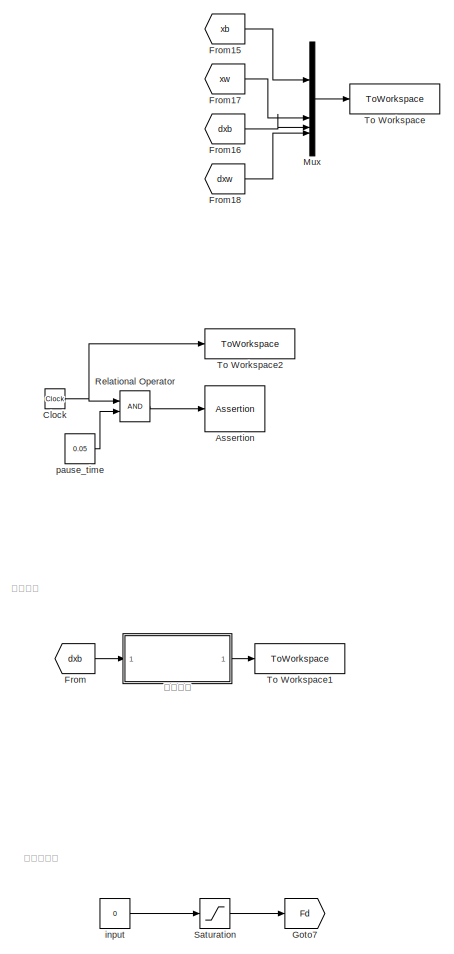
[diagram: root canvas - part 1/3, right side, full height]
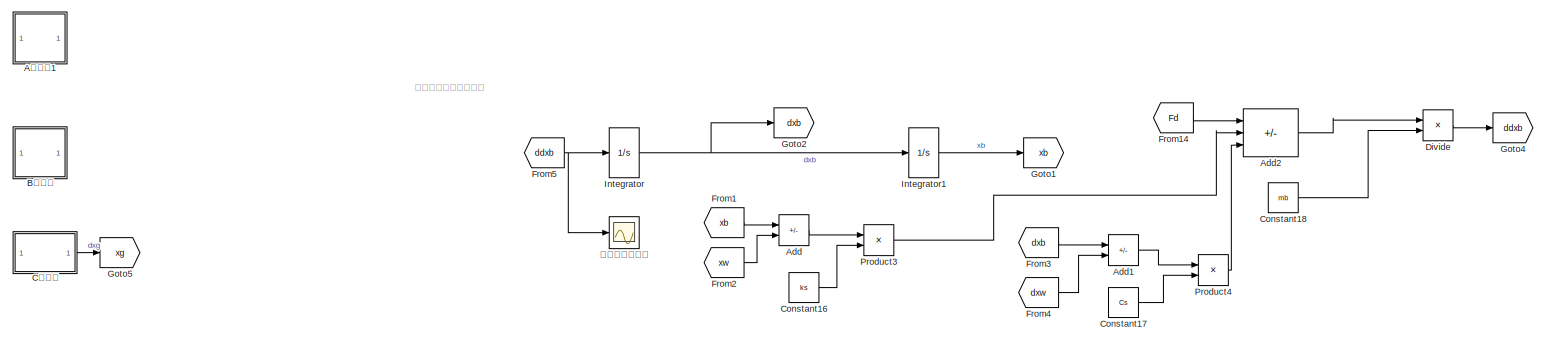
[diagram: root canvas - part 2/3, top center region]
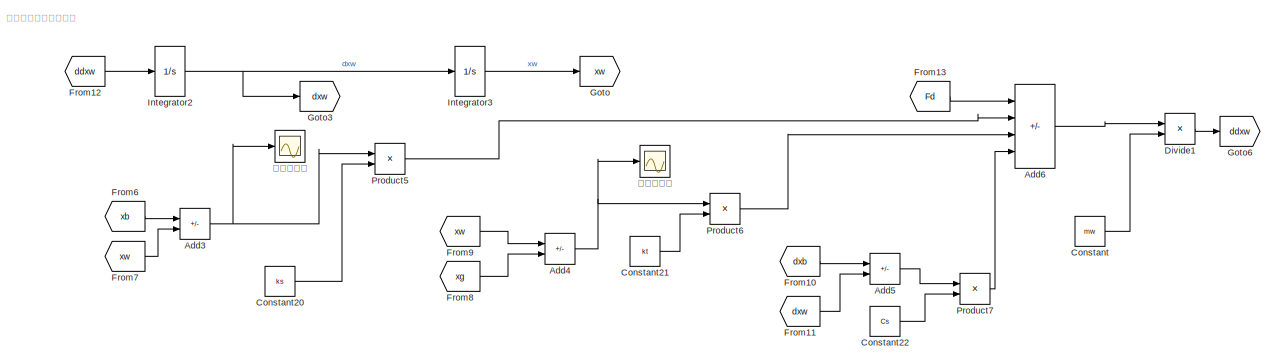
[diagram: root canvas - part 3/3, bottom center region]
MODEL slx_d5d291537383
KIND model
CONFIG AbsTol = auto
CONFIG EnableMultiTasking = off
CONFIG FixedStep = auto
CONFIG InitFcn = mb=320;\nmw=40;\nCs=1800;\nkt=200000;\nks=20000;\nv=36;\n\n
CONFIG MaxStep = auto
CONFIG MinStep = auto
CONFIG RelTol = 1e-3
CONFIG SampleTimeConstraint = Unconstrained
CONFIG SolverName = VariableStepAuto
CONFIG StartTime = 0.0
CONFIG StopTime = 20
BLOCK [Sum] Add
  IconShape = rectangular
  Inputs = +-
BLOCK [Sum] Add1
  IconShape = rectangular
  Inputs = +-
BLOCK [Sum] Add2
  IconShape = rectangular
  Inputs = +--
BLOCK [Sum] Add3
  IconShape = rectangular
  Inputs = +-
BLOCK [Sum] Add4
  IconShape = rectangular
  Inputs = +-
BLOCK [Sum] Add5
  IconShape = rectangular
  Inputs = +-
BLOCK [Sum] Add6
  IconShape = rectangular
  Inputs = -+-+
BLOCK [Assertion] Assertion
  AssertionFailFcn = set_param(bdroot,'SimulationCommand','pause')
  StopWhenAssertionFail = off
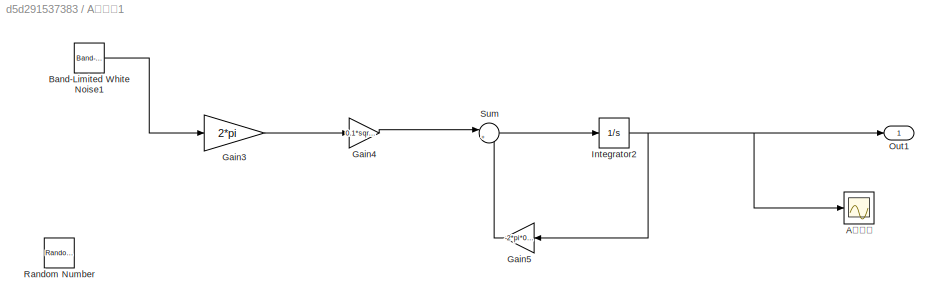
BLOCK [SubSystem] A级路面1
BLOCK [Scope] A级路面1/A级路面
  Floating = off
  NumInputPorts = 1
  ScopeSpecificationString = Simulink.scopes.TimeScopeBlockCfg('CurrentConfiguration', extmgr.ConfigurationSet(extmgr.Configuration('Core','General UI',true),extmgr.Configuration('Core','Source UI',true),extmgr.Configuration('Sources','WiredSimulink',true),extmgr.Configuration('Visuals','Time Domain',true,'SerializedDisplays',{struct('MinYLimReal','-0.01152','MaxYLimReal','0.00879','YLabelReal','','MinYLimMag','0.00000','MaxY...<+1449ch>
BLOCK [Reference] A级路面1/Band-Limited White Noise1  REF=simulink/Sources/Band-Limited
White Noise
  SourceBlock = simulink/Sources/Band-Limited\nWhite Noise
  SourceType = Band-Limited White Noise.
BLOCK [Gain] A级路面1/Gain3
  Gain = 2*pi
BLOCK [Gain] A级路面1/Gain4
  Gain = 0.1*sqrt(16*1e-6*v)
BLOCK [Gain] A级路面1/Gain5
  Gain = -2*pi*0.01*v
  NameLocation = top
BLOCK [Integrator] A级路面1/Integrator2
BLOCK [Outport] A级路面1/Out1
BLOCK [RandomNumber] A级路面1/Random Number
  SampleTime = 0.1
  Seed = 233
BLOCK [Sum] A级路面1/Sum
  Inputs = |++
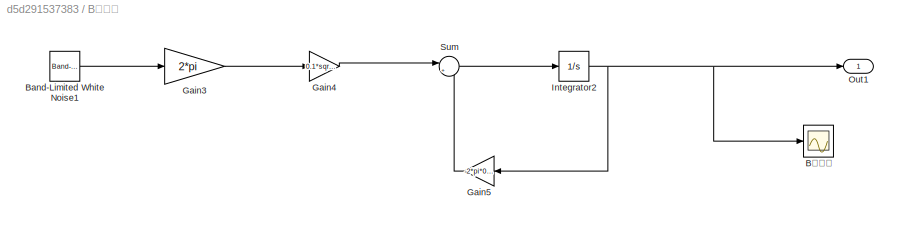
BLOCK [SubSystem] B级路面
BLOCK [Reference] B级路面/Band-Limited White Noise1  REF=simulink/Sources/Band-Limited
White Noise
  SourceBlock = simulink/Sources/Band-Limited\nWhite Noise
  SourceType = Band-Limited White Noise.
BLOCK [Scope] B级路面/B级路面
  Floating = off
  NumInputPorts = 1
  ScopeSpecificationString = Simulink.scopes.TimeScopeBlockCfg('CurrentConfiguration', extmgr.ConfigurationSet(extmgr.Configuration('Core','General UI',true),extmgr.Configuration('Core','Source UI',true),extmgr.Configuration('Sources','WiredSimulink',true),extmgr.Configuration('Visuals','Time Domain',true,'SerializedDisplays',{struct('MinYLimReal','-0.04608','MaxYLimReal','0.03516','YLabelReal','','MinYLimMag','0.00000','MaxY...<+1449ch>
BLOCK [Gain] B级路面/Gain3
  Gain = 2*pi
BLOCK [Gain] B级路面/Gain4
  Gain = 0.1*sqrt(64*1e-6*v)
BLOCK [Gain] B级路面/Gain5
  Gain = -2*pi*0.01*v
  NameLocation = top
BLOCK [Integrator] B级路面/Integrator2
BLOCK [Outport] B级路面/Out1
BLOCK [Sum] B级路面/Sum
  Inputs = |++
BLOCK [Clock] Clock
BLOCK [Constant] Constant
  Value = mw
BLOCK [Constant] Constant16
  Value = ks
BLOCK [Constant] Constant17
  Value = Cs
BLOCK [Constant] Constant18
  Value = mb
BLOCK [Constant] Constant20
  Value = ks
BLOCK [Constant] Constant21
  Value = kt
BLOCK [Constant] Constant22
  Value = Cs
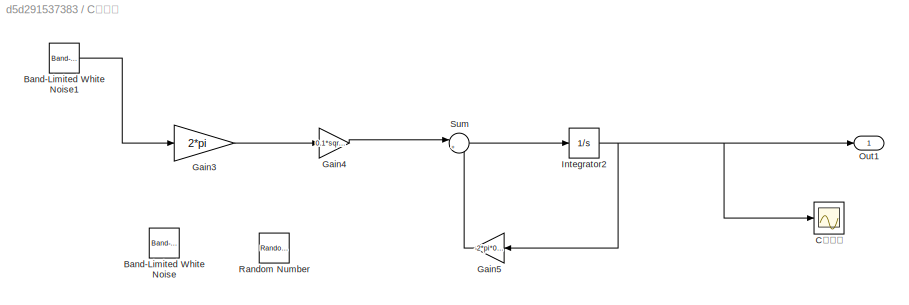
BLOCK [SubSystem] C级路面
BLOCK [Reference] C级路面/Band-Limited White Noise  REF=simulink/Sources/Band-Limited
White Noise
  SourceBlock = simulink/Sources/Band-Limited\nWhite Noise
  SourceType = Band-Limited White Noise.
BLOCK [Reference] C级路面/Band-Limited White Noise1  REF=simulink/Sources/Band-Limited
White Noise
  SourceBlock = simulink/Sources/Band-Limited\nWhite Noise
  SourceType = Band-Limited White Noise.
BLOCK [Scope] C级路面/C级路面
  Floating = off
  NumInputPorts = 1
  ScopeSpecificationString = Simulink.scopes.TimeScopeBlockCfg('CurrentConfiguration', extmgr.ConfigurationSet(extmgr.Configuration('Core','General UI',true),extmgr.Configuration('Core','Source UI',true),extmgr.Configuration('Sources','WiredSimulink',true),extmgr.Configuration('Visuals','Time Domain',true,'SerializedDisplays',{struct('MinYLimReal','-0.0621','MaxYLimReal','0.06383','YLabelReal','','MinYLimMag','0.00000','MaxYL...<+1447ch>
BLOCK [Gain] C级路面/Gain3
  Gain = 2*pi
BLOCK [Gain] C级路面/Gain4
  Gain = 0.1*sqrt(256*1e-6*v)
BLOCK [Gain] C级路面/Gain5
  Gain = -2*pi*0.01*v
  NameLocation = top
BLOCK [Integrator] C级路面/Integrator2
BLOCK [Outport] C级路面/Out1
BLOCK [RandomNumber] C级路面/Random Number
  SampleTime = 0.1
BLOCK [Sum] C级路面/Sum
  Inputs = |++
BLOCK [Product] Divide
  Inputs = */
BLOCK [Product] Divide1
  Inputs = */
BLOCK [From] From
  GotoTag = dxb
BLOCK [From] From1
  GotoTag = xb
BLOCK [From] From10
  GotoTag = dxb
BLOCK [From] From11
  GotoTag = dxw
BLOCK [From] From12
  GotoTag = ddxw
BLOCK [From] From13
  GotoTag = Fd
BLOCK [From] From14
  GotoTag = Fd
BLOCK [From] From15
  GotoTag = xb
BLOCK [From] From16
  GotoTag = dxb
BLOCK [From] From17
  GotoTag = xw
BLOCK [From] From18
  GotoTag = dxw
BLOCK [From] From2
  GotoTag = xw
BLOCK [From] From3
  GotoTag = dxb
BLOCK [From] From4
  GotoTag = dxw
BLOCK [From] From5
  GotoTag = ddxb
BLOCK [From] From6
  GotoTag = xb
BLOCK [From] From7
  GotoTag = xw
BLOCK [From] From8
  GotoTag = xg
BLOCK [From] From9
  GotoTag = xw
BLOCK [Goto] Goto
  GotoTag = xw
BLOCK [Goto] Goto1
  GotoTag = xb
BLOCK [Goto] Goto2
  GotoTag = dxb
BLOCK [Goto] Goto3
  GotoTag = dxw
BLOCK [Goto] Goto4
  GotoTag = ddxb
BLOCK [Goto] Goto5
  GotoTag = xg
BLOCK [Goto] Goto6
  GotoTag = ddxw
BLOCK [Goto] Goto7
  GotoTag = Fd
BLOCK [Integrator] Integrator
BLOCK [Integrator] Integrator1
BLOCK [Integrator] Integrator2
BLOCK [Integrator] Integrator3
BLOCK [Mux] Mux
  DisplayOption = bar
BLOCK [Product] Product3
BLOCK [Product] Product4
BLOCK [Product] Product5
BLOCK [Product] Product6
BLOCK [Product] Product7
BLOCK [RelationalOperator] Relational Operator
  InputSameDT = off
  OutDataTypeStr = boolean
  RndMeth = Simplest
BLOCK [Saturate] Saturation
  LowerLimit = -1500
  UpperLimit = 1500
BLOCK [ToWorkspace] To Workspace
  FixptAsFi = on
  MaxDataPoints = inf
  SampleTime = -1
  VariableName = obs
BLOCK [ToWorkspace] To Workspace1
  FixptAsFi = on
  MaxDataPoints = inf
  SampleTime = -1
  VariableName = reward
BLOCK [ToWorkspace] To Workspace2
  FixptAsFi = on
  MaxDataPoints = inf
  SampleTime = -1
  VariableName = time
BLOCK [Constant] input
  Value = 0
BLOCK [Constant] pause_time
  Value = 0.05
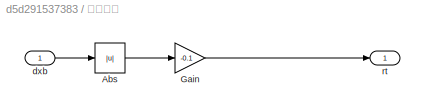
BLOCK [SubSystem] 奖励计算
BLOCK [Abs] 奖励计算/Abs
  SaturateOnIntegerOverflow = off
BLOCK [Gain] 奖励计算/Gain
  Gain = -0.1
BLOCK [Inport] 奖励计算/dxb
BLOCK [Outport] 奖励计算/rt
BLOCK [Scope] 悬架动行程
  Floating = off
  NumInputPorts = 1
  ScopeSpecificationString = Simulink.scopes.TimeScopeBlockCfg('CurrentConfiguration', extmgr.ConfigurationSet(extmgr.Configuration('Core','General UI',true),extmgr.Configuration('Core','Source UI',true),extmgr.Configuration('Sources','WiredSimulink',true,'DataLoggingVariableName','ScopeData2'),extmgr.Configuration('Visuals','Time Domain',true,'SerializedDisplays',{struct('MinYLimReal','-0.06095','MaxYLimReal','0.06333','YLab...<+1481ch>
BLOCK [Scope] 车身垂向加速度
  Floating = off
  NumInputPorts = 1
  ScopeSpecificationString = Simulink.scopes.TimeScopeBlockCfg('CurrentConfiguration', extmgr.ConfigurationSet(extmgr.Configuration('Core','General UI',true),extmgr.Configuration('Core','Source UI',true),extmgr.Configuration('Sources','WiredSimulink',true,'DataLoggingVariableName','ScopeData1'),extmgr.Configuration('Visuals','Time Domain',true,'SerializedDisplays',{struct('MinYLimReal','-9.04145','MaxYLimReal','10.13378','YLa...<+1487ch>
BLOCK [Scope] 轮胎动位移
  Floating = off
  NumInputPorts = 1
  ScopeSpecificationString = Simulink.scopes.TimeScopeBlockCfg('CurrentConfiguration', extmgr.ConfigurationSet(extmgr.Configuration('Core','General UI',true),extmgr.Configuration('Core','Source UI',true),extmgr.Configuration('Sources','WiredSimulink',true,'DataLoggingVariableName','ScopeData3'),extmgr.Configuration('Visuals','Time Domain',true,'SerializedDisplays',{struct('MinYLimReal','-0.03107','MaxYLimReal','0.02765','YLab...<+1481ch>
ANNOTATION (root): 简化作动器
ANNOTATION (root): 簧上质量牛顿第二定律
ANNOTATION (root): 簧下质量牛顿第二定律
ANNOTATION (root): 计算奖励
LINE Add1:1 -> Product4:1
LINE Add2:1 -> Divide:1
NET Add3:1 -> Product5:1, 悬架动行程:1
NET Add4:1 -> Product6:1, 轮胎动位移:1
LINE Add5:1 -> Product7:1
LINE Add6:1 -> Divide1:1
LINE Add:1 -> Product3:1
LINE A级路面1/Band-Limited White Noise1:1 -> A级路面1/Gain3:1
LINE A级路面1/Gain3:1 -> A级路面1/Gain4:1
LINE A级路面1/Gain4:1 -> A级路面1/Sum:1
LINE A级路面1/Gain5:1 -> A级路面1/Sum:2
NET A级路面1/Integrator2:1 -> A级路面1/A级路面:1, A级路面1/Gain5:1, A级路面1/Out1:1
LINE A级路面1/Sum:1 -> A级路面1/Integrator2:1
LINE B级路面/Band-Limited White Noise1:1 -> B级路面/Gain3:1
LINE B级路面/Gain3:1 -> B级路面/Gain4:1
LINE B级路面/Gain4:1 -> B级路面/Sum:1
LINE B级路面/Gain5:1 -> B级路面/Sum:2
NET B级路面/Integrator2:1 -> B级路面/B级路面:1, B级路面/Gain5:1, B级路面/Out1:1
LINE B级路面/Sum:1 -> B级路面/Integrator2:1
NET Clock:1 -> Relational Operator:1, To Workspace2:1
LINE Constant16:1 -> Product3:2
LINE Constant17:1 -> Product4:2
LINE Constant18:1 -> Divide:2
LINE Constant20:1 -> Product5:2
LINE Constant21:1 -> Product6:2
LINE Constant22:1 -> Product7:2
LINE Constant:1 -> Divide1:2
LINE C级路面/Band-Limited White Noise1:1 -> C级路面/Gain3:1
LINE C级路面/Gain3:1 -> C级路面/Gain4:1
LINE C级路面/Gain4:1 -> C级路面/Sum:1
LINE C级路面/Gain5:1 -> C级路面/Sum:2
NET C级路面/Integrator2:1 -> C级路面/C级路面:1, C级路面/Gain5:1, C级路面/Out1:1
LINE C级路面/Sum:1 -> C级路面/Integrator2:1
LINE C级路面:1 -> Goto5:1
LINE Divide1:1 -> Goto6:1
LINE Divide:1 -> Goto4:1
LINE From10:1 -> Add5:1
LINE From11:1 -> Add5:2
LINE From12:1 -> Integrator2:1
LINE From13:1 -> Add6:1
LINE From14:1 -> Add2:1
LINE From15:1 -> Mux:1
LINE From16:1 -> Mux:3
LINE From17:1 -> Mux:2
LINE From18:1 -> Mux:4
LINE From1:1 -> Add:1
LINE From2:1 -> Add:2
LINE From3:1 -> Add1:1
LINE From4:1 -> Add1:2
NET From5:1 -> Integrator:1, 车身垂向加速度:1
LINE From6:1 -> Add3:1
LINE From7:1 -> Add3:2
LINE From8:1 -> Add4:2
LINE From9:1 -> Add4:1
LINE From:1 -> 奖励计算:1
LINE Integrator1:1 -> Goto1:1
NET Integrator2:1 -> Goto3:1, Integrator3:1
LINE Integrator3:1 -> Goto:1
NET Integrator:1 -> Goto2:1, Integrator1:1
LINE Mux:1 -> To Workspace:1
LINE Product3:1 -> Add2:2
LINE Product4:1 -> Add2:3
LINE Product5:1 -> Add6:2
LINE Product6:1 -> Add6:3
LINE Product7:1 -> Add6:4
LINE Relational Operator:1 -> Assertion:1
LINE Saturation:1 -> Goto7:1
LINE input:1 -> Saturation:1
LINE pause_time:1 -> Relational Operator:2
LINE 奖励计算/Abs:1 -> 奖励计算/Gain:1
LINE 奖励计算/Gain:1 -> 奖励计算/rt:1
LINE 奖励计算/dxb:1 -> 奖励计算/Abs:1
LINE 奖励计算:1 -> To Workspace1:1
note: NET lines group one-source signal fan-out (src -> all destinations, sorted); 1:1 wires keep LINE
